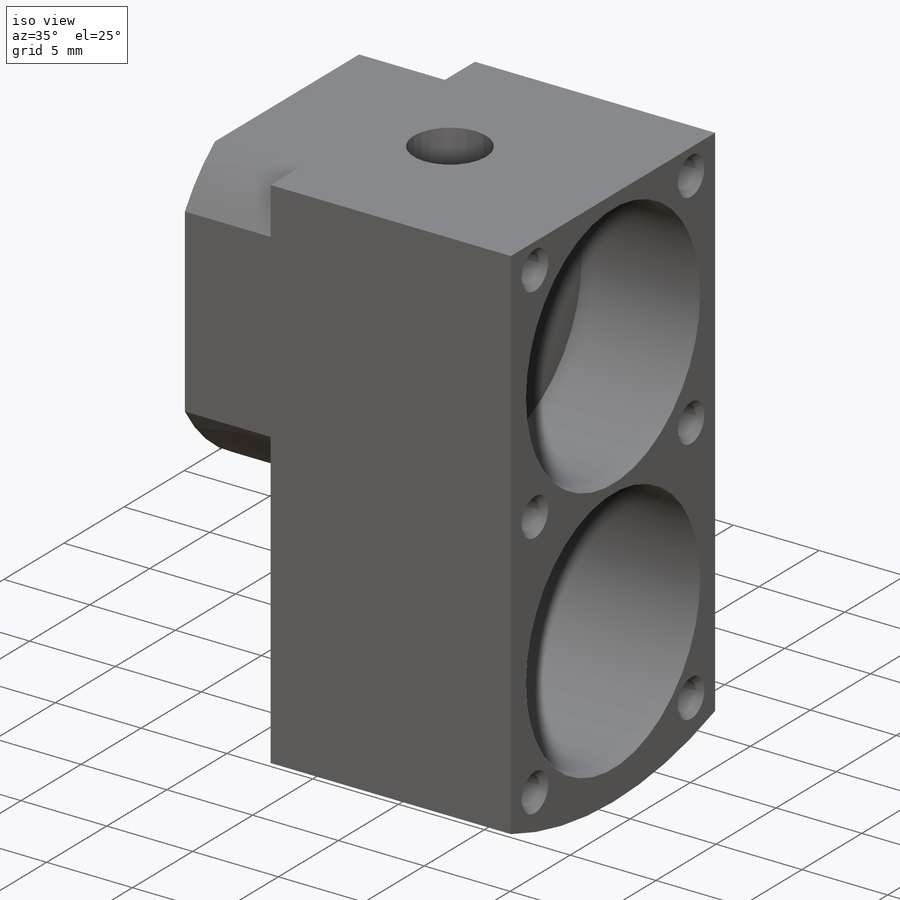
[diagram: iso view]
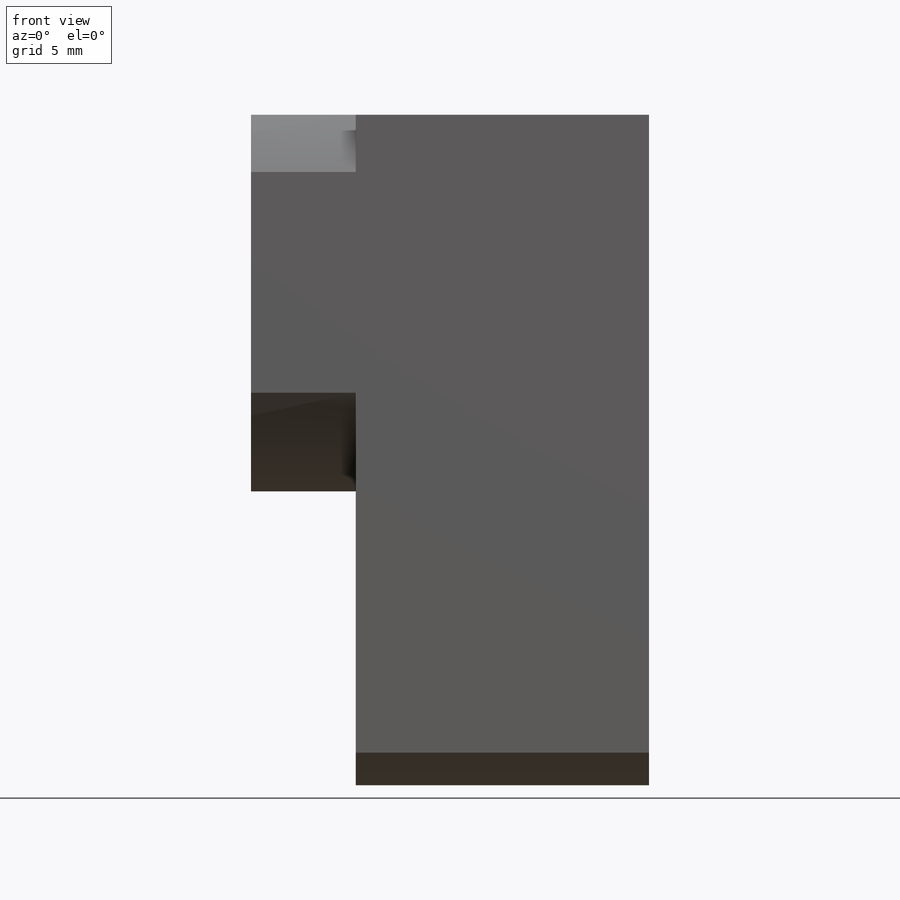
[diagram: front view]
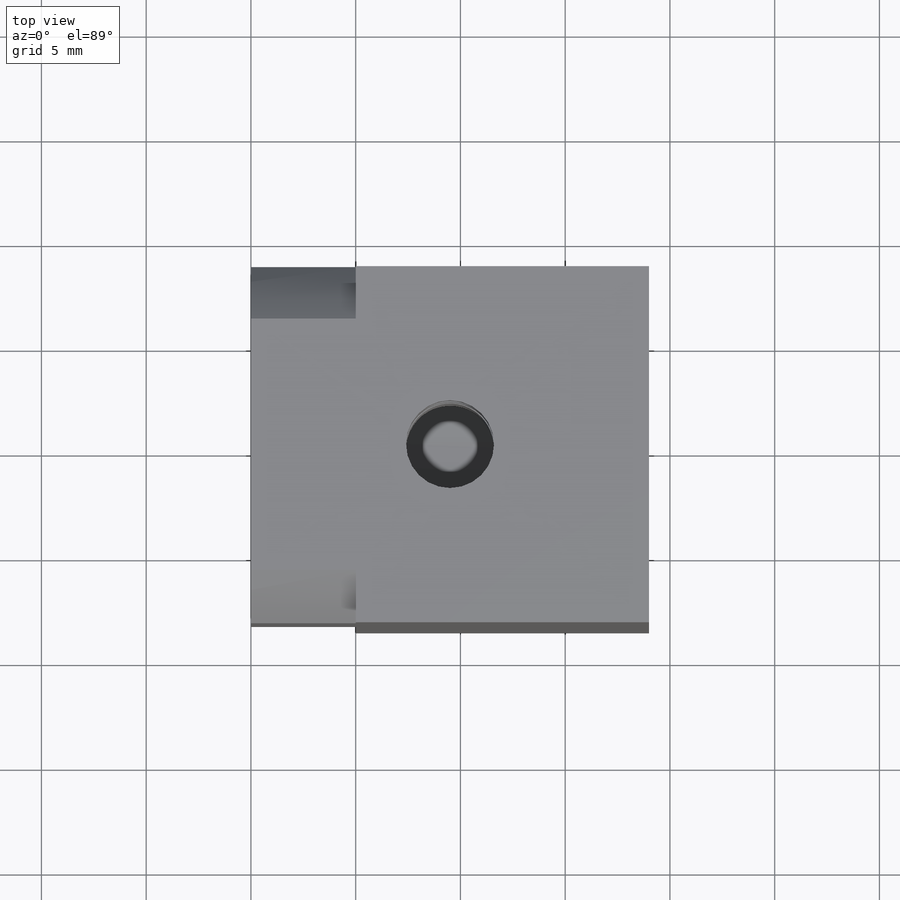
[diagram: top view]
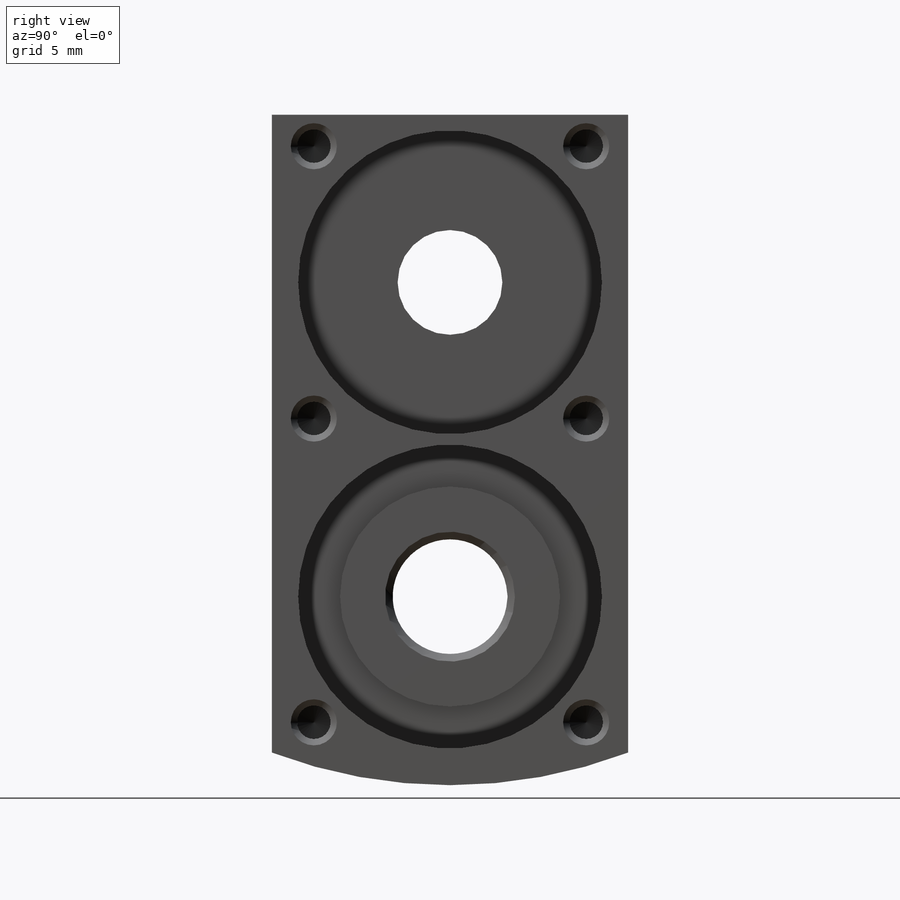
[diagram: right view]
SOLIDWORKS PART (.sldprt)
format: sldprt  version: not decoded by parser v0  size: 447,488 bytes
history: native  units: mm
features: sketch x13, chamfer x8, cut_extrude x5, plane x3, hole x3, material x1, revolve x1, thread x1 (+13 scaffold rows collapsed)
feature tree (48):
  scaffold x13  (default folders/planes/origin — collapsed)
  material  "2024-T3"
  plane  "Спереди"
  plane  "Сверху"
  plane  "Справа"
  sketch  "Эскиз2"  dims[D1=5.0mm D2=5.2mm D3=19.0mm D4=6.9mm D5=14.5mm D6=14.0mm D7=48.0mm D8=20.0mm D9=7.0mm]
  revolve  "Повернуть1"  Angle=360deg
  sketch  "Эскиз3"  dims[D1=14.5mm D2=15.0mm]
  cut_extrude  "Вырез-Вытянуть1"  Depth=12mm
  sketch  "Эскиз5"  dims[c1.D2=14.0mm c1.D1=17.0mm c2.D2=8.0mm]
  cut_extrude  "Вырез-Вытянуть3"  [1 undecoded]
  sketch  "Эскиз9"  dims[D1=36.0mm D2=1.0mm D3=14.0mm]
  sketch  "Эскиз4"  dims[D1=4.2mm D2=9.5mm]
  cut_extrude  "Вырез-Вытянуть2"  Depth=10mm
  hole  "Отверстие обработанное метчиком M3x0.51"  [1 undecoded]
  sketch  "Эскиз7"  dims[D1=4.0mm D2=9.5mm]
  sketch  "Эскиз6"  dims[hole-wizard template sketch: 55 standard entries collapsed; hole parameters kept: c17.Глубина проходного сверла=6.4mm c17.Диаметр передней зенковки=3.3mm c17.D4=~3.666174mm c17.Угол передней зенковки=90.0deg]
  thread  "Отверстие резьбы1"  Diameter=3mm  [1 undecoded]
  chamfer  "Фаска1"  Distance=3mm Angle=45deg
  hole  "Отверстие обработанное метчиком M2x0.41"  [1 undecoded]
  sketch  "Эскиз11"  dims[c1.D5=14.5mm c1.D1=13.0mm c1.D2=6.5mm c1.D3=6.5mm c1.D4=13.0mm c2.D5=6.5mm c2.D6=13.0mm c2.D7=14.5mm]
  sketch  "Эскиз10"  dims[hole-wizard template sketch: 39 standard entries collapsed; hole parameters kept: c13.Диаметр сверла=1.6mm c13.Глубина сверла=7.0mm c13.Диаметр передней зенковки=2.2mm c13.D4=~33.297463mm c13.Угол передней зенковки=90.0deg c14.D5=~14.816244mm c14.Угол заточки сверла=118.0deg]
  chamfer  "Отверстие резьбы2"  Distance=4mm
  chamfer  "Отверстие резьбы3"  Distance=4mm
  chamfer  "Отверстие резьбы4"  Distance=4mm
  chamfer  "Отверстие резьбы5"  Distance=4mm
  chamfer  "Отверстие резьбы6"  Distance=4mm
  chamfer  "Отверстие резьбы7"  Distance=4mm
  sketch  "Эскиз12"  dims[D1=10.5mm]
  cut_extrude  "Вырез-Вытянуть4"  Depth=0.8mm
  sketch  "Эскиз15"  dims[D1=10.0mm D2=21.0mm]
  cut_extrude  "Вырез-Вытянуть8"  [1 undecoded]
  hole  "Отверстие обработанное метчиком M6x0.51"  [1 undecoded]
  sketch  "Эскиз14"  dims[D1=22.0mm]
  sketch  "Эскиз13"  dims[hole-wizard template sketch: 46 standard entries collapsed; hole parameters kept: c15.Диаметр проходного сверла=5.5mm c15.Глубина проходного сверла=2.0mm c15.Диаметр передней зенковки=6.2mm c15.D4=~3.666174mm c15.Угол передней зенковки=90.0deg c15.Диаметр задней зенковки=6.2mm c15.D6=~9.919017mm c15.Угол задней зенковки=90.0deg]
  chamfer  "Отверстие резьбы8"  Distance=6mm
decode coverage: 26 of 31 modeling features carry decoded parameters
note: ~ marks probable driven/reference dimensions
note: 6 parameter values undecoded
summary: no parameter record found for 5 features
note: suppression state not decoded; provenance and decode notes live in map.json
